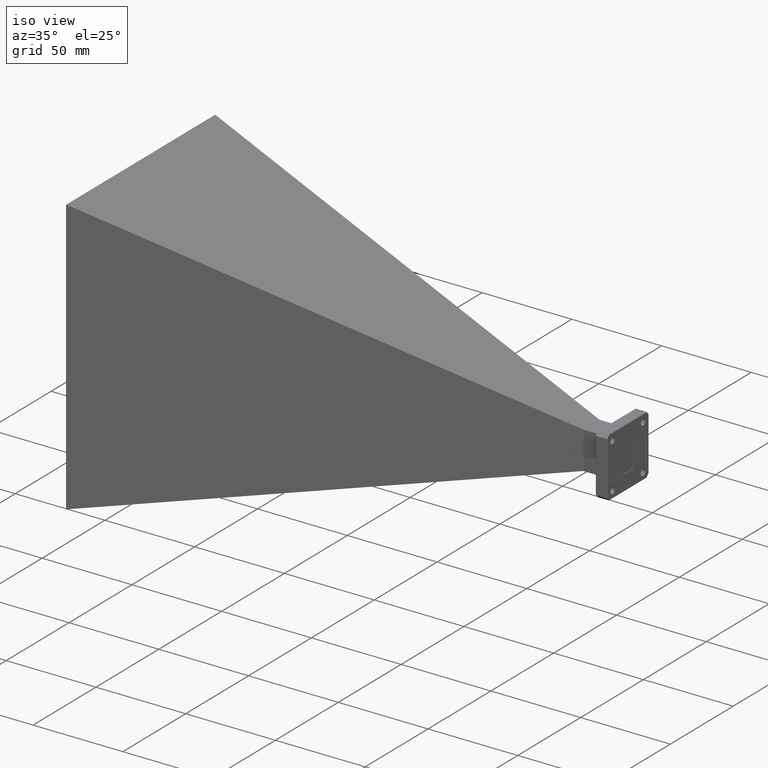
[diagram: clean part render]
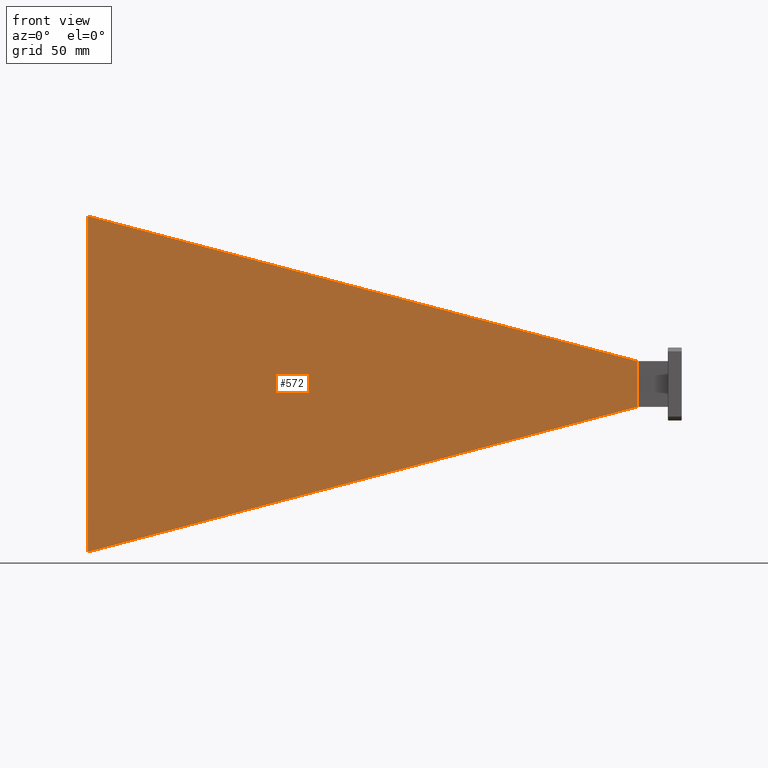
[diagram: tour spotlight — one face highlighted and labeled with its STEP entity id]
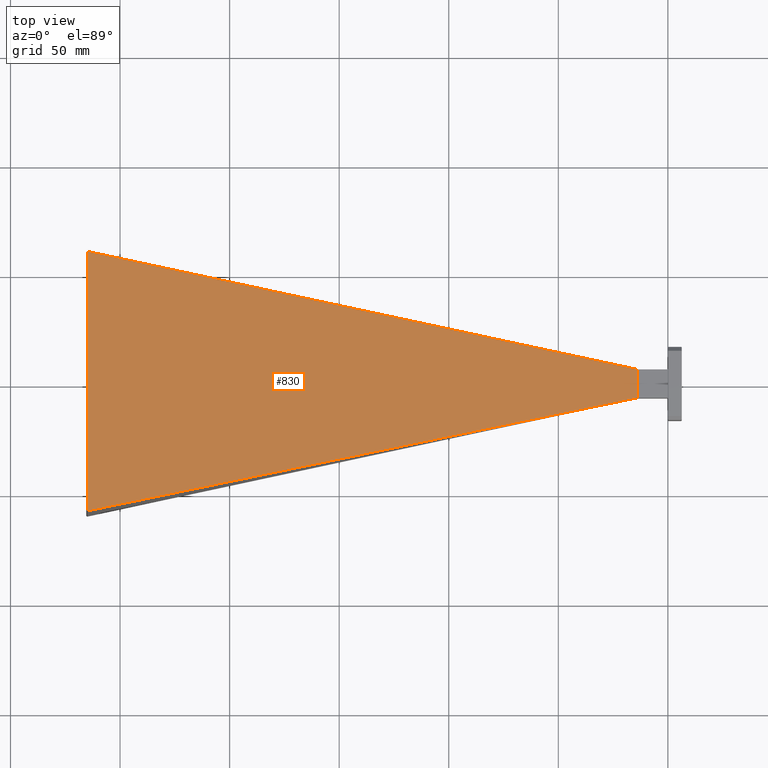
[diagram: tour spotlight — one face highlighted and labeled with its STEP entity id]
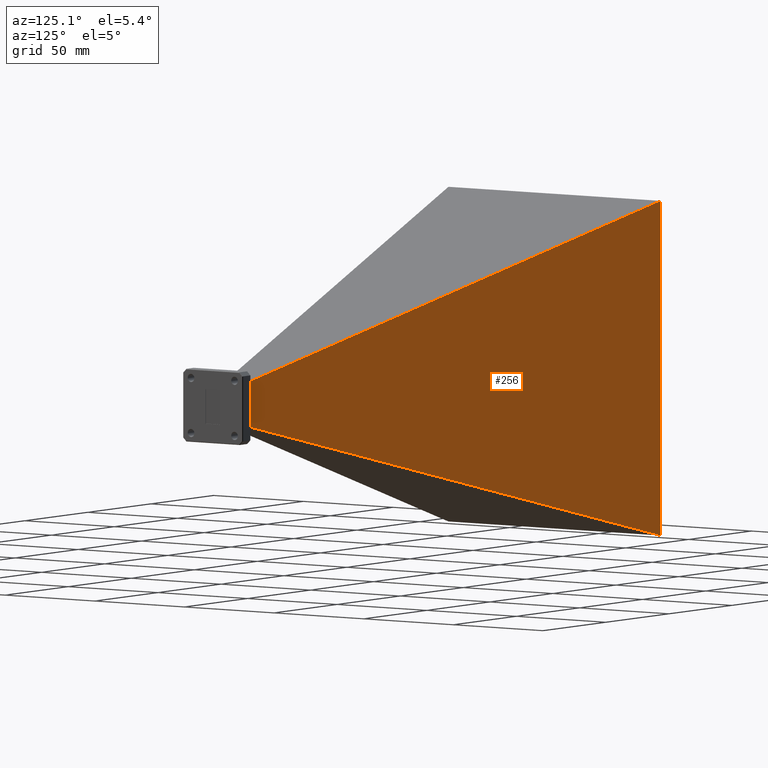
[diagram: tour spotlight — one face highlighted and labeled with its STEP entity id]
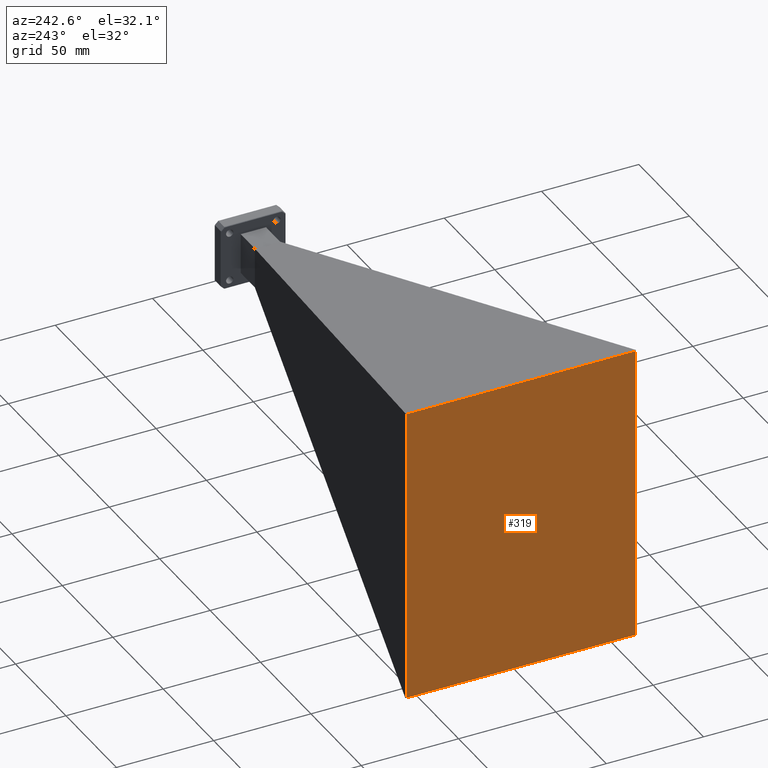
[diagram: tour spotlight — one face highlighted and labeled with its STEP entity id]
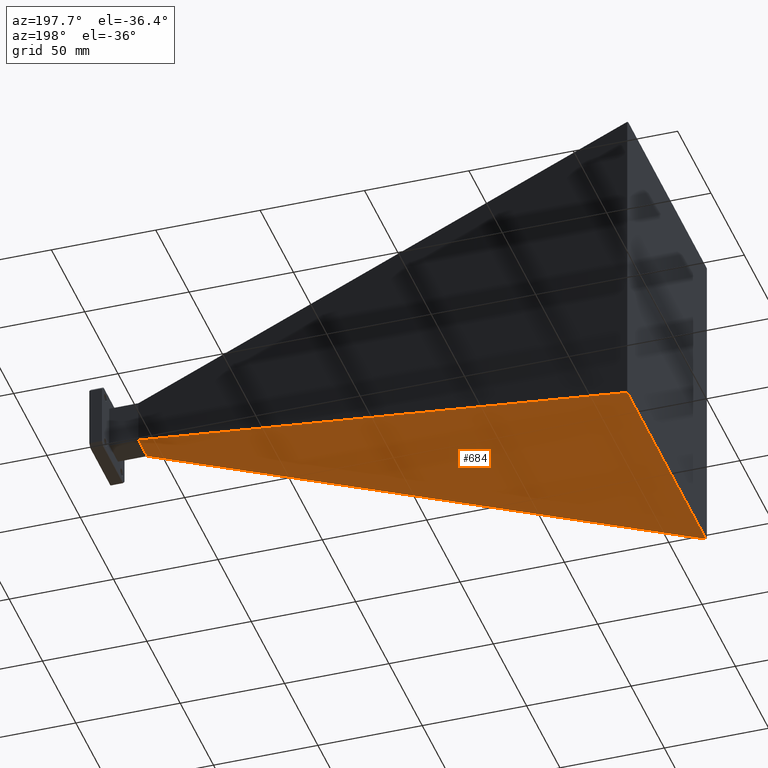
[diagram: tour spotlight — one face highlighted and labeled with its STEP entity id]
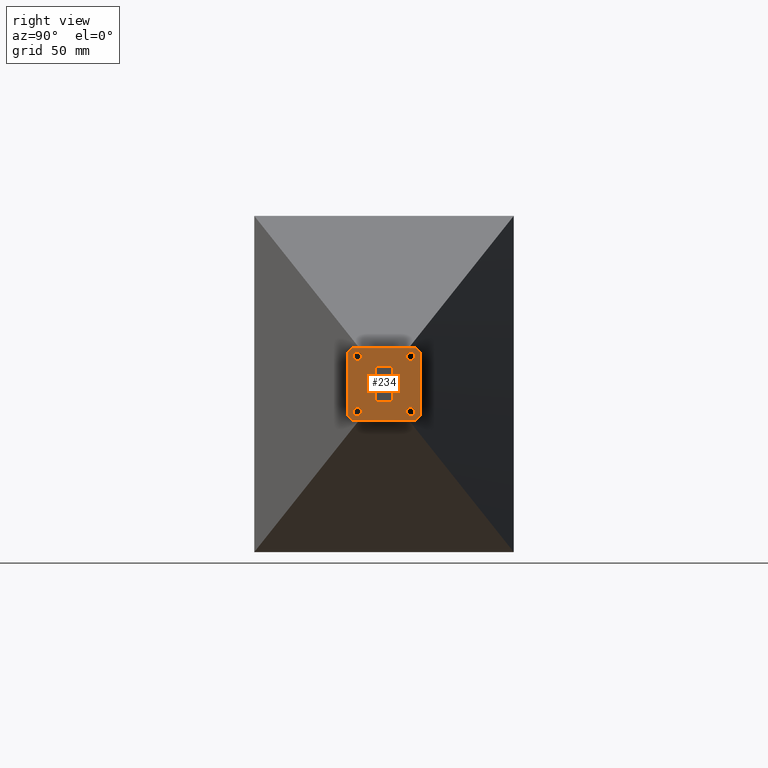
[diagram: tour spotlight — one face highlighted and labeled with its STEP entity id]
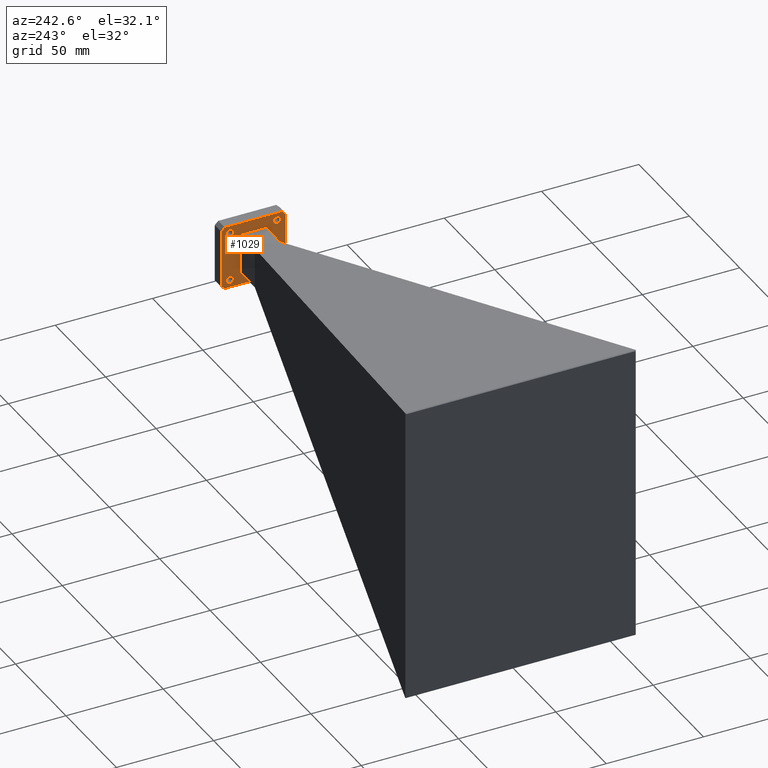
[diagram: tour spotlight — one face highlighted and labeled with its STEP entity id]
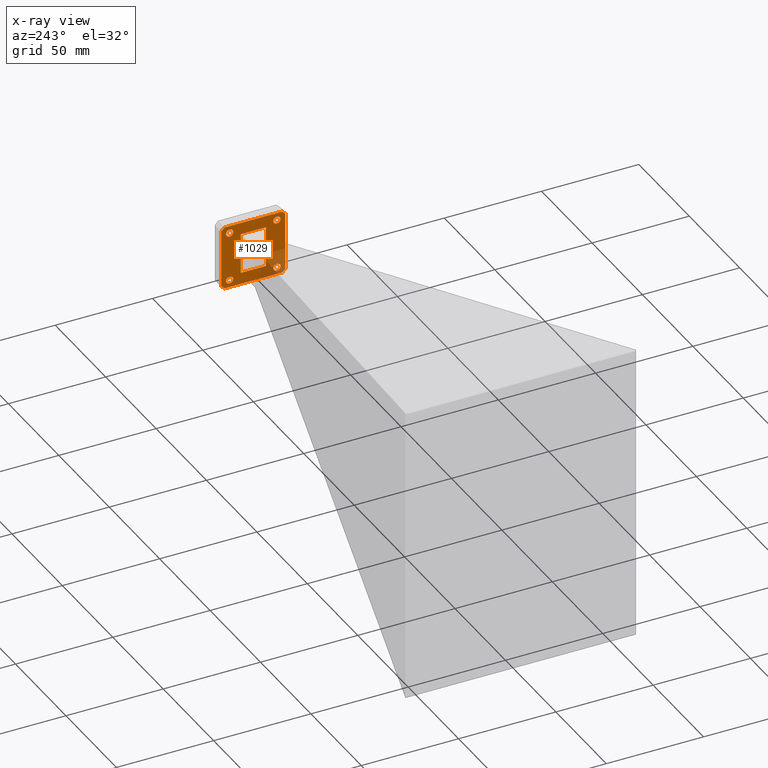
[diagram: x-ray of the same camera — body ghosted, this tour face saturated]
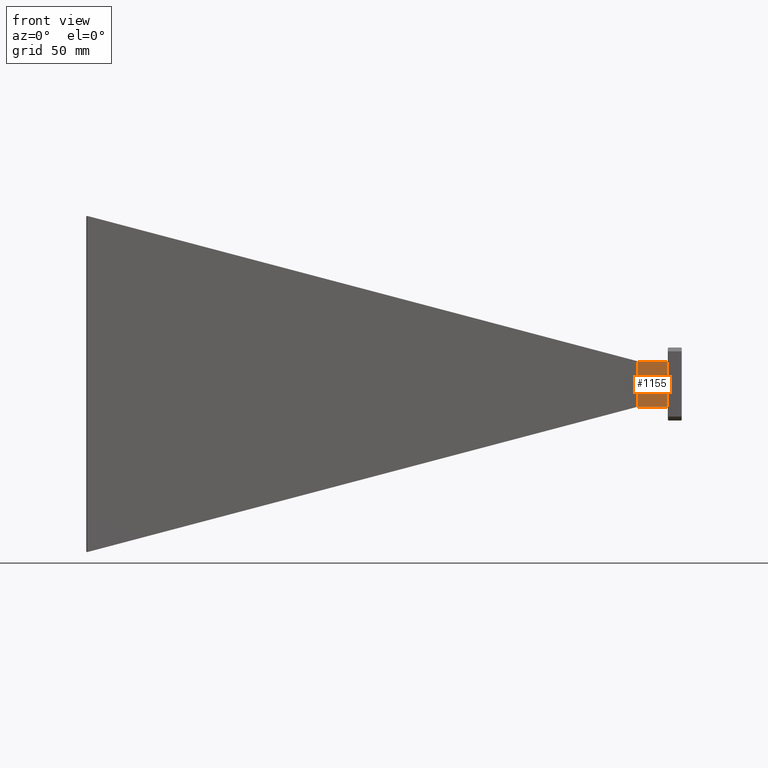
[diagram: tour spotlight — one face highlighted and labeled with its STEP entity id]
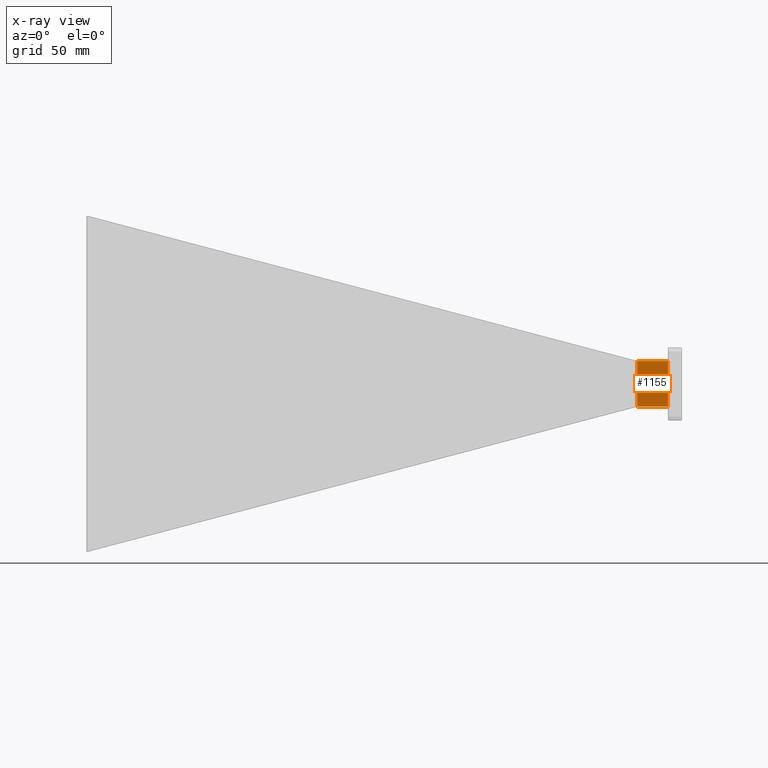
[diagram: x-ray of the same camera — body ghosted, this tour face saturated]
A machine part: a face-by-face anatomy tour. The part has 52 B-rep faces; the first image is the clean iso view, then the 8 largest visible faces are spotlighted one at a time (largest first), each with its STEP entity span.

Face 1 — front view, entity #572. In plain terms, the highlighted planar face has unit normal (-0.2056, 0.9786, -0).
Definition (entity closure, byte-faithful):
#31 = DIRECTION ( 'NONE',  ( -0.9786435543088368700, -0.2055645728469925300, 0.0000000000000000000 ) ) ;
#52 = ORIENTED_EDGE ( 'NONE', *, *, #519, .T. ) ;
#103 = VERTEX_POINT ( 'NONE', #1036 ) ;
#105 = FACE_OUTER_BOUND ( 'NONE', #690, .T. ) ;
#187 = VECTOR ( 'NONE', #320, 39.37007874015748900 ) ;
#198 = AXIS2_PLACEMENT_3D ( 'NONE', #1228, #1000, #31 ) ;
#267 = VECTOR ( 'NONE', #437, 39.37007874015748100 ) ;
#274 = PLANE ( 'NONE',  #198 ) ;
#311 = LINE ( 'NONE', #764, #1553 ) ;
#320 = DIRECTION ( 'NONE',  ( -0.9475210733738798100, -0.1990272800081800400, -0.2501838470504364500 ) ) ;
#437 = DIRECTION ( 'NONE',  ( -1.816786782790845300E-017, 8.649285477099961300E-017, 1.000000000000000000 ) ) ;
#464 = ORIENTED_EDGE ( 'NONE', *, *, #1197, .T. ) ;
#492 = CARTESIAN_POINT ( 'NONE',  ( -10.43042712891382400, -2.330888708543059600, 2.105002856822493500E-016 ) ) ;
#503 = VECTOR ( 'NONE', #762, 39.37007874015748100 ) ;
#519 = EDGE_CURVE ( 'NONE', #1318, #103, #1019, .T. ) ;
#572 = ADVANCED_FACE ( 'NONE', ( #105 ), #274, .F. ) ;
#585 = EDGE_CURVE ( 'NONE', #1325, #1318, #311, .T. ) ;
#690 = EDGE_LOOP ( 'NONE', ( #882, #52, #879, #464 ) ) ;
#762 = DIRECTION ( 'NONE',  ( 2.599588613867308300E-033, -9.030902458394260300E-017, -1.000000000000000000 ) ) ;
#764 = CARTESIAN_POINT ( 'NONE',  ( -0.5500000000000000400, -0.2555000000000000000, 0.4109999999999999200 ) ) ;
#775 = CARTESIAN_POINT ( 'NONE',  ( -10.43042712891382400, -2.330888708543059600, 3.019831971210175300 ) ) ;
#821 = LINE ( 'NONE', #1020, #267 ) ;
#823 = LINE ( 'NONE', #1371, #187 ) ;
#879 = ORIENTED_EDGE ( 'NONE', *, *, #1179, .F. ) ;
#882 = ORIENTED_EDGE ( 'NONE', *, *, #585, .T. ) ;
#945 = CARTESIAN_POINT ( 'NONE',  ( -0.5500000000000001600, -0.2555000000000000000, -0.4110000000000002000 ) ) ;
#968 = VERTEX_POINT ( 'NONE', #945 ) ;
#990 = DIRECTION ( 'NONE',  ( -0.9475210733738798100, -0.1990272800081800400, 0.2501838470504365000 ) ) ;
#1000 = DIRECTION ( 'NONE',  ( -0.2055645728469925600, 0.9786435543088369800, -8.838034480499373700E-017 ) ) ;
#1019 = LINE ( 'NONE', #492, #503 ) ;
#1020 = CARTESIAN_POINT ( 'NONE',  ( -0.5500000000000002700, -0.2554999999999998400, 1.210659708864073600E-017 ) ) ;
#1036 = CARTESIAN_POINT ( 'NONE',  ( -10.43042712891382200, -2.330888708543059600, -3.019831971210174400 ) ) ;
#1179 = EDGE_CURVE ( 'NONE', #968, #103, #823, .T. ) ;
#1197 = EDGE_CURVE ( 'NONE', #968, #1325, #821, .T. ) ;
#1228 = CARTESIAN_POINT ( 'NONE',  ( 0.02815883401052830800, -0.1340574449166772300, 1.210659708864073600E-017 ) ) ;
#1318 = VERTEX_POINT ( 'NONE', #775 ) ;
#1325 = VERTEX_POINT ( 'NONE', #1389 ) ;
#1371 = CARTESIAN_POINT ( 'NONE',  ( -0.5500000000000000400, -0.2555000000000000000, -0.4110000000000001400 ) ) ;
#1389 = CARTESIAN_POINT ( 'NONE',  ( -0.5500000000000002700, -0.2554999999999998900, 0.4110000000000002000 ) ) ;
#1553 = VECTOR ( 'NONE', #990, 39.37007874015748900 ) ;

Face 2 — top view, entity #830. In plain terms, the highlighted planar face has unit normal (-0.2553, -0, -0.9669).
Definition (entity closure, byte-faithful):
#35 = VERTEX_POINT ( 'NONE', #1247 ) ;
#99 = CARTESIAN_POINT ( 'NONE',  ( -0.5500000000000000400, 0.2555000000000000000, 0.4109999999999999200 ) ) ;
#121 = VERTEX_POINT ( 'NONE', #1286 ) ;
#127 = VECTOR ( 'NONE', #574, 39.37007874015748900 ) ;
#128 = VECTOR ( 'NONE', #873, 39.37007874015748900 ) ;
#161 = VECTOR ( 'NONE', #510, 39.37007874015748900 ) ;
#165 = EDGE_CURVE ( 'NONE', #1325, #121, #313, .T. ) ;
#173 = VERTEX_POINT ( 'NONE', #1393 ) ;
#225 = CARTESIAN_POINT ( 'NONE',  ( -10.43066271585688100, 3.533144259064127700E-016, 3.019894175681806700 ) ) ;
#270 = EDGE_CURVE ( 'NONE', #173, #35, #1147, .T. ) ;
#311 = LINE ( 'NONE', #764, #1553 ) ;
#313 = LINE ( 'NONE', #553, #793 ) ;
#338 = PLANE ( 'NONE',  #1467 ) ;
#405 = EDGE_CURVE ( 'NONE', #35, #1318, #1146, .T. ) ;
#446 = LINE ( 'NONE', #99, #127 ) ;
#463 = DIRECTION ( 'NONE',  ( -0.9668642071559803200, 0.0000000000000000000, 0.2552912159096699100 ) ) ;
#510 = DIRECTION ( 'NONE',  ( 0.8176158582900786600, -0.5337589064448571300, -0.2158836215727540400 ) ) ;
#553 = CARTESIAN_POINT ( 'NONE',  ( -0.5500000000000000400, 2.906827618119491600E-017, 0.4110000000000002000 ) ) ;
#574 = DIRECTION ( 'NONE',  ( -0.9475210733738798100, 0.1990272800081801800, 0.2501838470504364500 ) ) ;
#585 = EDGE_CURVE ( 'NONE', #1325, #1318, #311, .T. ) ;
#591 = EDGE_CURVE ( 'NONE', #1281, #173, #971, .T. ) ;
#630 = CARTESIAN_POINT ( 'NONE',  ( -9.916057635557525200, 2.666681239349232100, 2.884017642358320800 ) ) ;
#719 = ORIENTED_EDGE ( 'NONE', *, *, #591, .T. ) ;
#764 = CARTESIAN_POINT ( 'NONE',  ( -0.5500000000000000400, -0.2555000000000000000, 0.4109999999999999200 ) ) ;
#775 = CARTESIAN_POINT ( 'NONE',  ( -10.43042712891382400, -2.330888708543059600, 3.019831971210175300 ) ) ;
#793 = VECTOR ( 'NONE', #1046, 39.37007874015748100 ) ;
#815 = ORIENTED_EDGE ( 'NONE', *, *, #405, .T. ) ;
#830 = ADVANCED_FACE ( 'NONE', ( #1037 ), #338, .F. ) ;
#844 = CARTESIAN_POINT ( 'NONE',  ( -9.916057635557491400, -2.666681239349212500, 2.884017642358311000 ) ) ;
#845 = EDGE_LOOP ( 'NONE', ( #982, #815, #885, #1420, #984, #719 ) ) ;
#873 = DIRECTION ( 'NONE',  ( -0.8176158582900527900, -0.5337589064448997600, 0.2158836215727472600 ) ) ;
#885 = ORIENTED_EDGE ( 'NONE', *, *, #585, .F. ) ;
#971 = LINE ( 'NONE', #630, #128 ) ;
#982 = ORIENTED_EDGE ( 'NONE', *, *, #270, .T. ) ;
#984 = ORIENTED_EDGE ( 'NONE', *, *, #1383, .T. ) ;
#990 = DIRECTION ( 'NONE',  ( -0.9475210733738798100, -0.1990272800081800400, 0.2501838470504365000 ) ) ;
#1012 = CARTESIAN_POINT ( 'NONE',  ( -10.43042712891382400, 2.330888708543061000, 3.019831971210174900 ) ) ;
#1037 = FACE_OUTER_BOUND ( 'NONE', #845, .T. ) ;
#1046 = DIRECTION ( 'NONE',  ( -2.887825856553795500E-017, 1.000000000000000000, -1.093706043606831500E-016 ) ) ;
#1146 = LINE ( 'NONE', #844, #161 ) ;
#1147 = LINE ( 'NONE', #225, #1378 ) ;
#1152 = CARTESIAN_POINT ( 'NONE',  ( 0.06560244424911324000, 2.906827618119491600E-017, 0.2484560818922040000 ) ) ;
#1172 = DIRECTION ( 'NONE',  ( -0.2552912159096699100, -1.131188884139123500E-016, -0.9668642071559803200 ) ) ;
#1191 = DIRECTION ( 'NONE',  ( 0.0000000000000000000, -1.000000000000000000, 1.169956314203110500E-016 ) ) ;
#1247 = CARTESIAN_POINT ( 'NONE',  ( -10.43066271585688100, -2.330734911832997600, 3.019894175681806700 ) ) ;
#1281 = VERTEX_POINT ( 'NONE', #1012 ) ;
#1286 = CARTESIAN_POINT ( 'NONE',  ( -0.5500000000000001600, 0.2555000000000000600, 0.4109999999999999800 ) ) ;
#1318 = VERTEX_POINT ( 'NONE', #775 ) ;
#1325 = VERTEX_POINT ( 'NONE', #1389 ) ;
#1378 = VECTOR ( 'NONE', #1191, 39.37007874015748100 ) ;
#1383 = EDGE_CURVE ( 'NONE', #121, #1281, #446, .T. ) ;
#1389 = CARTESIAN_POINT ( 'NONE',  ( -0.5500000000000002700, -0.2554999999999998900, 0.4110000000000002000 ) ) ;
#1393 = CARTESIAN_POINT ( 'NONE',  ( -10.43066271585688100, 2.330734911833002100, 3.019894175681806700 ) ) ;
#1420 = ORIENTED_EDGE ( 'NONE', *, *, #165, .T. ) ;
#1467 = AXIS2_PLACEMENT_3D ( 'NONE', #1152, #1172, #463 ) ;
#1553 = VECTOR ( 'NONE', #990, 39.37007874015748900 ) ;

Face 3 — auxiliary view, entity #256. In plain terms, the highlighted planar face has unit normal (-0.2056, -0.9786, 0).
Definition (entity closure, byte-faithful):
#56 = ORIENTED_EDGE ( 'NONE', *, *, #509, .T. ) ;
#99 = CARTESIAN_POINT ( 'NONE',  ( -0.5500000000000000400, 0.2555000000000000000, 0.4109999999999999200 ) ) ;
#109 = VECTOR ( 'NONE', #1062, 39.37007874015748100 ) ;
#121 = VERTEX_POINT ( 'NONE', #1286 ) ;
#127 = VECTOR ( 'NONE', #574, 39.37007874015748900 ) ;
#136 = CARTESIAN_POINT ( 'NONE',  ( -0.5500000000000000400, 0.2555000000000000600, -0.4110000000000002000 ) ) ;
#256 = ADVANCED_FACE ( 'NONE', ( #658 ), #1303, .F. ) ;
#265 = DIRECTION ( 'NONE',  ( -0.9475210733738798100, 0.1990272800081801200, -0.2501838470504365600 ) ) ;
#330 = AXIS2_PLACEMENT_3D ( 'NONE', #696, #594, #1176 ) ;
#349 = VERTEX_POINT ( 'NONE', #136 ) ;
#375 = DIRECTION ( 'NONE',  ( -4.818992971522679100E-034, 9.030902458394256600E-017, 1.000000000000000000 ) ) ;
#446 = LINE ( 'NONE', #99, #127 ) ;
#509 = EDGE_CURVE ( 'NONE', #517, #1281, #1459, .T. ) ;
#517 = VERTEX_POINT ( 'NONE', #992 ) ;
#551 = VECTOR ( 'NONE', #375, 39.37007874015748100 ) ;
#574 = DIRECTION ( 'NONE',  ( -0.9475210733738798100, 0.1990272800081801800, 0.2501838470504364500 ) ) ;
#594 = DIRECTION ( 'NONE',  ( -0.2055645728469925900, -0.9786435543088369800, 8.838034480499368800E-017 ) ) ;
#622 = EDGE_LOOP ( 'NONE', ( #1158, #56, #670, #1071 ) ) ;
#658 = FACE_OUTER_BOUND ( 'NONE', #622, .T. ) ;
#670 = ORIENTED_EDGE ( 'NONE', *, *, #1383, .F. ) ;
#696 = CARTESIAN_POINT ( 'NONE',  ( 0.02815883401052837700, 0.1340574449166775100, -1.210659708864075500E-017 ) ) ;
#992 = CARTESIAN_POINT ( 'NONE',  ( -10.43042712891382500, 2.330888708543061000, -3.019831971210176700 ) ) ;
#1006 = LINE ( 'NONE', #1240, #1468 ) ;
#1012 = CARTESIAN_POINT ( 'NONE',  ( -10.43042712891382400, 2.330888708543061000, 3.019831971210174900 ) ) ;
#1062 = DIRECTION ( 'NONE',  ( -1.816786782790844700E-017, -8.649285477099955100E-017, -1.000000000000000000 ) ) ;
#1066 = EDGE_CURVE ( 'NONE', #349, #517, #1006, .T. ) ;
#1071 = ORIENTED_EDGE ( 'NONE', *, *, #1417, .T. ) ;
#1158 = ORIENTED_EDGE ( 'NONE', *, *, #1066, .T. ) ;
#1176 = DIRECTION ( 'NONE',  ( 0.9786435543088368700, -0.2055645728469925600, 0.0000000000000000000 ) ) ;
#1240 = CARTESIAN_POINT ( 'NONE',  ( -0.5500000000000000400, 0.2555000000000000000, -0.4110000000000001400 ) ) ;
#1281 = VERTEX_POINT ( 'NONE', #1012 ) ;
#1286 = CARTESIAN_POINT ( 'NONE',  ( -0.5500000000000001600, 0.2555000000000000600, 0.4109999999999999800 ) ) ;
#1303 = PLANE ( 'NONE',  #330 ) ;
#1324 = LINE ( 'NONE', #1529, #109 ) ;
#1383 = EDGE_CURVE ( 'NONE', #121, #1281, #446, .T. ) ;
#1417 = EDGE_CURVE ( 'NONE', #121, #349, #1324, .T. ) ;
#1459 = LINE ( 'NONE', #1470, #551 ) ;
#1468 = VECTOR ( 'NONE', #265, 39.37007874015748900 ) ;
#1470 = CARTESIAN_POINT ( 'NONE',  ( -10.43042712891382500, 2.330888708543061800, -2.105002856822494800E-016 ) ) ;
#1529 = CARTESIAN_POINT ( 'NONE',  ( -0.5499999999999999300, 0.2555000000000001200, -1.210659708864075500E-017 ) ) ;

Face 4 — auxiliary view, entity #319. In plain terms, the highlighted planar face has unit normal (1, 0, 0).
Definition (entity closure, byte-faithful):
#150 = CARTESIAN_POINT ( 'NONE',  ( -10.45000000000000100, -2.318111076894876300, 2.093463502316090500E-016 ) ) ;
#276 = FACE_OUTER_BOUND ( 'NONE', #1457, .T. ) ;
#319 = ADVANCED_FACE ( 'NONE', ( #276 ), #342, .F. ) ;
#342 = PLANE ( 'NONE',  #412 ) ;
#344 = DIRECTION ( 'NONE',  ( 0.0000000000000000000, 1.000000000000000000, -1.169956314203110800E-016 ) ) ;
#389 = EDGE_CURVE ( 'NONE', #582, #1485, #1096, .T. ) ;
#412 = AXIS2_PLACEMENT_3D ( 'NONE', #938, #587, #1543 ) ;
#432 = VECTOR ( 'NONE', #1032, 39.37007874015748100 ) ;
#488 = VERTEX_POINT ( 'NONE', #745 ) ;
#576 = LINE ( 'NONE', #761, #1501 ) ;
#582 = VERTEX_POINT ( 'NONE', #1106 ) ;
#587 = DIRECTION ( 'NONE',  ( 1.000000000000000000, 0.0000000000000000000, 0.0000000000000000000 ) ) ;
#597 = CARTESIAN_POINT ( 'NONE',  ( -10.45000000000000100, -2.318111076894875800, 3.008635469251668600 ) ) ;
#631 = ORIENTED_EDGE ( 'NONE', *, *, #1280, .T. ) ;
#641 = LINE ( 'NONE', #911, #432 ) ;
#721 = VECTOR ( 'NONE', #344, 39.37007874015748100 ) ;
#745 = CARTESIAN_POINT ( 'NONE',  ( -10.45000000000000100, 2.318111076894878900, 3.008635469251668100 ) ) ;
#761 = CARTESIAN_POINT ( 'NONE',  ( -10.45000000000000100, 2.318111076894878500, -2.093463502316091500E-016 ) ) ;
#787 = ORIENTED_EDGE ( 'NONE', *, *, #1166, .T. ) ;
#878 = EDGE_CURVE ( 'NONE', #1485, #488, #1445, .T. ) ;
#911 = CARTESIAN_POINT ( 'NONE',  ( -10.45000000000000100, -7.039944128772858600E-016, -3.008635469251669500 ) ) ;
#937 = CARTESIAN_POINT ( 'NONE',  ( -10.45000000000000100, 3.519972064386428800E-016, 3.008635469251668600 ) ) ;
#938 = CARTESIAN_POINT ( 'NONE',  ( -10.45000000000000100, 0.0000000000000000000, 0.0000000000000000000 ) ) ;
#949 = VECTOR ( 'NONE', #1212, 39.37007874015748100 ) ;
#1007 = DIRECTION ( 'NONE',  ( 0.0000000000000000000, -9.030902458394256600E-017, -1.000000000000000000 ) ) ;
#1018 = ORIENTED_EDGE ( 'NONE', *, *, #389, .T. ) ;
#1032 = DIRECTION ( 'NONE',  ( 0.0000000000000000000, -1.000000000000000000, 2.339912628406221500E-016 ) ) ;
#1096 = LINE ( 'NONE', #150, #949 ) ;
#1106 = CARTESIAN_POINT ( 'NONE',  ( -10.45000000000000100, -2.318111076894876700, -3.008635469251668600 ) ) ;
#1112 = ORIENTED_EDGE ( 'NONE', *, *, #878, .T. ) ;
#1166 = EDGE_CURVE ( 'NONE', #488, #1341, #576, .T. ) ;
#1212 = DIRECTION ( 'NONE',  ( 0.0000000000000000000, 9.030902458394260300E-017, 1.000000000000000000 ) ) ;
#1280 = EDGE_CURVE ( 'NONE', #1341, #582, #641, .T. ) ;
#1341 = VERTEX_POINT ( 'NONE', #1427 ) ;
#1427 = CARTESIAN_POINT ( 'NONE',  ( -10.45000000000000100, 2.318111076894878100, -3.008635469251669900 ) ) ;
#1445 = LINE ( 'NONE', #937, #721 ) ;
#1457 = EDGE_LOOP ( 'NONE', ( #1018, #1112, #787, #631 ) ) ;
#1485 = VERTEX_POINT ( 'NONE', #597 ) ;
#1501 = VECTOR ( 'NONE', #1007, 39.37007874015748100 ) ;
#1543 = DIRECTION ( 'NONE',  ( 0.0000000000000000000, 0.0000000000000000000, -1.000000000000000000 ) ) ;

Face 5 — auxiliary view, entity #684. In plain terms, the highlighted planar face has unit normal (-0.2553, 0, 0.9669).
Definition (entity closure, byte-faithful):
#103 = VERTEX_POINT ( 'NONE', #1036 ) ;
#136 = CARTESIAN_POINT ( 'NONE',  ( -0.5500000000000000400, 0.2555000000000000600, -0.4110000000000002000 ) ) ;
#177 = EDGE_CURVE ( 'NONE', #345, #517, #292, .T. ) ;
#187 = VECTOR ( 'NONE', #320, 39.37007874015748900 ) ;
#220 = ORIENTED_EDGE ( 'NONE', *, *, #1066, .F. ) ;
#265 = DIRECTION ( 'NONE',  ( -0.9475210733738798100, 0.1990272800081801200, -0.2501838470504365600 ) ) ;
#292 = LINE ( 'NONE', #1518, #720 ) ;
#302 = EDGE_CURVE ( 'NONE', #103, #1394, #1494, .T. ) ;
#320 = DIRECTION ( 'NONE',  ( -0.9475210733738798100, -0.1990272800081800400, -0.2501838470504364500 ) ) ;
#345 = VERTEX_POINT ( 'NONE', #985 ) ;
#349 = VERTEX_POINT ( 'NONE', #136 ) ;
#350 = CARTESIAN_POINT ( 'NONE',  ( -10.43066271585688100, -2.330734911832998500, -3.019894175681806700 ) ) ;
#370 = VECTOR ( 'NONE', #781, 39.37007874015748100 ) ;
#416 = VECTOR ( 'NONE', #792, 39.37007874015748100 ) ;
#440 = AXIS2_PLACEMENT_3D ( 'NONE', #1398, #776, #1259 ) ;
#502 = ORIENTED_EDGE ( 'NONE', *, *, #1261, .T. ) ;
#515 = ORIENTED_EDGE ( 'NONE', *, *, #177, .T. ) ;
#517 = VERTEX_POINT ( 'NONE', #992 ) ;
#666 = CARTESIAN_POINT ( 'NONE',  ( -10.43066271585688100, -7.066288518128256500E-016, -3.019894175681807200 ) ) ;
#684 = ADVANCED_FACE ( 'NONE', ( #1279 ), #1267, .F. ) ;
#688 = DIRECTION ( 'NONE',  ( 0.8176158582900527900, 0.5337589064448997600, 0.2158836215727471800 ) ) ;
#720 = VECTOR ( 'NONE', #688, 39.37007874015748900 ) ;
#729 = LINE ( 'NONE', #666, #416 ) ;
#747 = EDGE_CURVE ( 'NONE', #349, #968, #1163, .T. ) ;
#776 = DIRECTION ( 'NONE',  ( -0.2552912159096699700, 2.262377768278247000E-016, 0.9668642071559803200 ) ) ;
#781 = DIRECTION ( 'NONE',  ( -5.775651713107592200E-017, -1.000000000000000000, 2.187412087213663100E-016 ) ) ;
#792 = DIRECTION ( 'NONE',  ( 0.0000000000000000000, 1.000000000000000000, -2.339912628406221000E-016 ) ) ;
#823 = LINE ( 'NONE', #1371, #187 ) ;
#908 = EDGE_LOOP ( 'NONE', ( #1185, #1300, #502, #515, #220, #1292 ) ) ;
#945 = CARTESIAN_POINT ( 'NONE',  ( -0.5500000000000001600, -0.2555000000000000000, -0.4110000000000002000 ) ) ;
#968 = VERTEX_POINT ( 'NONE', #945 ) ;
#985 = CARTESIAN_POINT ( 'NONE',  ( -10.43066271585688100, 2.330734911833001200, -3.019894175681807600 ) ) ;
#992 = CARTESIAN_POINT ( 'NONE',  ( -10.43042712891382500, 2.330888708543061000, -3.019831971210176700 ) ) ;
#1006 = LINE ( 'NONE', #1240, #1468 ) ;
#1036 = CARTESIAN_POINT ( 'NONE',  ( -10.43042712891382200, -2.330888708543059600, -3.019831971210174400 ) ) ;
#1066 = EDGE_CURVE ( 'NONE', #349, #517, #1006, .T. ) ;
#1163 = LINE ( 'NONE', #1508, #370 ) ;
#1168 = VECTOR ( 'NONE', #1448, 39.37007874015748900 ) ;
#1179 = EDGE_CURVE ( 'NONE', #968, #103, #823, .T. ) ;
#1185 = ORIENTED_EDGE ( 'NONE', *, *, #1179, .T. ) ;
#1240 = CARTESIAN_POINT ( 'NONE',  ( -0.5500000000000000400, 0.2555000000000000000, -0.4110000000000001400 ) ) ;
#1259 = DIRECTION ( 'NONE',  ( 0.9668642071559803200, 0.0000000000000000000, 0.2552912159096699700 ) ) ;
#1261 = EDGE_CURVE ( 'NONE', #1394, #345, #729, .T. ) ;
#1267 = PLANE ( 'NONE',  #440 ) ;
#1279 = FACE_OUTER_BOUND ( 'NONE', #908, .T. ) ;
#1292 = ORIENTED_EDGE ( 'NONE', *, *, #747, .T. ) ;
#1300 = ORIENTED_EDGE ( 'NONE', *, *, #302, .T. ) ;
#1371 = CARTESIAN_POINT ( 'NONE',  ( -0.5500000000000000400, -0.2555000000000000000, -0.4110000000000001400 ) ) ;
#1394 = VERTEX_POINT ( 'NONE', #350 ) ;
#1398 = CARTESIAN_POINT ( 'NONE',  ( 0.06560244424911325400, -5.813655236238983300E-017, -0.2484560818922040000 ) ) ;
#1440 = CARTESIAN_POINT ( 'NONE',  ( -9.916057635557491400, -2.666681239349213000, -2.884017642358311000 ) ) ;
#1448 = DIRECTION ( 'NONE',  ( -0.8176158582900787700, 0.5337589064448571300, -0.2158836215727542600 ) ) ;
#1468 = VECTOR ( 'NONE', #265, 39.37007874015748900 ) ;
#1494 = LINE ( 'NONE', #1440, #1168 ) ;
#1508 = CARTESIAN_POINT ( 'NONE',  ( -0.5500000000000000400, -5.813655236238983300E-017, -0.4110000000000002000 ) ) ;
#1518 = CARTESIAN_POINT ( 'NONE',  ( -9.916057635557525200, 2.666681239349231600, -2.884017642358321300 ) ) ;

Face 6 — right view, entity #234. In plain terms, the highlighted planar face has unit normal (1, 0, -0).
Definition (entity closure, byte-faithful):
#4 = VERTEX_POINT ( 'NONE', #294 ) ;
#9 = DIRECTION ( 'NONE',  ( -0.0000000000000000000, -0.0000000000000000000, 1.000000000000000000 ) ) ;
#16 = DIRECTION ( 'NONE',  ( 1.000000000000000000, -0.0000000000000000000, -0.0000000000000000000 ) ) ;
#46 = CARTESIAN_POINT ( 'NONE',  ( 0.2500000000000000000, 0.4779999999999998100, 0.4970000000000001100 ) ) ;
#47 = CARTESIAN_POINT ( 'NONE',  ( 0.2500000000000000000, -0.1554999999999999400, 0.3110000000000001100 ) ) ;
#48 = VECTOR ( 'NONE', #423, 39.37007874015748100 ) ;
#67 = VECTOR ( 'NONE', #210, 39.37007874015748100 ) ;
#93 = VECTOR ( 'NONE', #1189, 39.37007874015748900 ) ;
#95 = EDGE_CURVE ( 'NONE', #920, #1054, #925, .T. ) ;
#96 = CARTESIAN_POINT ( 'NONE',  ( 0.2500000000000000000, -0.4780000000000000900, -0.5704999999999997900 ) ) ;
#108 = CARTESIAN_POINT ( 'NONE',  ( 0.2500000000000000000, 0.6459999999999974700, -0.5818578643762679600 ) ) ;
#115 = DIRECTION ( 'NONE',  ( 0.0000000000000000000, 0.0000000000000000000, -1.000000000000000000 ) ) ;
#118 = DIRECTION ( 'NONE',  ( 1.000000000000000000, 0.0000000000000000000, -0.0000000000000000000 ) ) ;
#120 = AXIS2_PLACEMENT_3D ( 'NONE', #544, #185, #1263 ) ;
#146 = EDGE_CURVE ( 'NONE', #633, #195, #1074, .T. ) ;
#163 = FACE_BOUND ( 'NONE', #214, .T. ) ;
#168 = AXIS2_PLACEMENT_3D ( 'NONE', #1313, #118, #957 ) ;
#169 = CARTESIAN_POINT ( 'NONE',  ( 0.2500000000000000000, 0.4779999999999998100, 0.5705000000000001200 ) ) ;
#171 = ORIENTED_EDGE ( 'NONE', *, *, #1504, .F. ) ;
#172 = CARTESIAN_POINT ( 'NONE',  ( 0.2500000000000000000, -0.4780000000000002000, 0.4235000000000001500 ) ) ;
#175 = EDGE_LOOP ( 'NONE', ( #839, #451 ) ) ;
#185 = DIRECTION ( 'NONE',  ( 1.000000000000000000, -0.0000000000000000000, -0.0000000000000000000 ) ) ;
#190 = EDGE_CURVE ( 'NONE', #573, #253, #1327, .T. ) ;
#195 = VERTEX_POINT ( 'NONE', #96 ) ;
#201 = DIRECTION ( 'NONE',  ( 0.0000000000000000000, 0.0000000000000000000, -1.000000000000000000 ) ) ;
#203 = FACE_OUTER_BOUND ( 'NONE', #495, .T. ) ;
#210 = DIRECTION ( 'NONE',  ( 0.0000000000000000000, -1.000000000000000000, -1.041100607341563500E-016 ) ) ;
#212 = DIRECTION ( 'NONE',  ( 1.000000000000000000, -0.0000000000000000000, -0.0000000000000000000 ) ) ;
#214 = EDGE_LOOP ( 'NONE', ( #536, #1442 ) ) ;
#218 = ORIENTED_EDGE ( 'NONE', *, *, #1136, .F. ) ;
#233 = CARTESIAN_POINT ( 'NONE',  ( 0.2500000000000000000, -0.6139289321881350500, -0.6139289321881301600 ) ) ;
#234 = ADVANCED_FACE ( 'NONE', ( #1306, #203, #163, #1535, #743, #989 ), #825, .T. ) ;
#237 = LINE ( 'NONE', #361, #1140 ) ;
#244 = CARTESIAN_POINT ( 'NONE',  ( 0.2500000000000000000, 0.1555000000000000000, 0.3110000000000001100 ) ) ;
#249 = CARTESIAN_POINT ( 'NONE',  ( 0.2500000000000000000, -0.4780000000000002000, 0.4970000000000001100 ) ) ;
#253 = VERTEX_POINT ( 'NONE', #1426 ) ;
#257 = DIRECTION ( 'NONE',  ( 1.000000000000000000, -0.0000000000000000000, -0.0000000000000000000 ) ) ;
#263 = CARTESIAN_POINT ( 'NONE',  ( 0.2500000000000000000, 0.4779999999999998100, 0.4235000000000001500 ) ) ;
#275 = VERTEX_POINT ( 'NONE', #487 ) ;
#284 = ORIENTED_EDGE ( 'NONE', *, *, #965, .T. ) ;
#294 = CARTESIAN_POINT ( 'NONE',  ( 0.2500000000000000000, -0.5818578643762678500, 0.6459999999999971300 ) ) ;
#296 = DIRECTION ( 'NONE',  ( 1.000000000000000000, -0.0000000000000000000, -0.0000000000000000000 ) ) ;
#332 = DIRECTION ( 'NONE',  ( 1.000000000000000000, -0.0000000000000000000, -0.0000000000000000000 ) ) ;
#361 = CARTESIAN_POINT ( 'NONE',  ( 0.2500000000000000000, -0.6139289321881312700, 0.6139289321881338200 ) ) ;
#368 = VERTEX_POINT ( 'NONE', #614 ) ;
#374 = ORIENTED_EDGE ( 'NONE', *, *, #1302, .T. ) ;
#376 = CARTESIAN_POINT ( 'NONE',  ( 0.2500000000000000000, 0.6139289321881301600, -0.6139289321881348200 ) ) ;
#379 = VECTOR ( 'NONE', #1379, 39.37007874015748100 ) ;
#394 = VERTEX_POINT ( 'NONE', #263 ) ;
#401 = VERTEX_POINT ( 'NONE', #1088 ) ;
#406 = CIRCLE ( 'NONE', #120, 0.07349999999999998200 ) ;
#413 = AXIS2_PLACEMENT_3D ( 'NONE', #613, #16, #414 ) ;
#414 = DIRECTION ( 'NONE',  ( 0.0000000000000000000, 0.0000000000000000000, -1.000000000000000000 ) ) ;
#420 = LINE ( 'NONE', #376, #1253 ) ;
#423 = DIRECTION ( 'NONE',  ( 0.0000000000000000000, 2.082201214683127100E-016, -1.000000000000000000 ) ) ;
#436 = CARTESIAN_POINT ( 'NONE',  ( 0.2500000000000000000, 0.6139289321881339400, 0.6139289321881303800 ) ) ;
#451 = ORIENTED_EDGE ( 'NONE', *, *, #146, .F. ) ;
#473 = AXIS2_PLACEMENT_3D ( 'NONE', #797, #332, #201 ) ;
#478 = ORIENTED_EDGE ( 'NONE', *, *, #95, .T. ) ;
#480 = VERTEX_POINT ( 'NONE', #621 ) ;
#487 = CARTESIAN_POINT ( 'NONE',  ( 0.2500000000000000000, 0.1555000000000000000, -0.3110000000000001100 ) ) ;
#495 = EDGE_LOOP ( 'NONE', ( #284, #478, #1145, #870, #998, #963, #1294, #374 ) ) ;
#526 = CARTESIAN_POINT ( 'NONE',  ( 0.2500000000000000000, 0.4779999999999999200, -0.4969999999999998300 ) ) ;
#528 = DIRECTION ( 'NONE',  ( 1.000000000000000000, -0.0000000000000000000, -0.0000000000000000000 ) ) ;
#536 = ORIENTED_EDGE ( 'NONE', *, *, #1105, .F. ) ;
#544 = CARTESIAN_POINT ( 'NONE',  ( 0.2500000000000000000, 0.4779999999999999200, -0.4969999999999998300 ) ) ;
#559 = CARTESIAN_POINT ( 'NONE',  ( 0.2500000000000000000, -0.6459999999999971300, -0.5859999999999997400 ) ) ;
#562 = VERTEX_POINT ( 'NONE', #1227 ) ;
#568 = LINE ( 'NONE', #1381, #673 ) ;
#570 = CARTESIAN_POINT ( 'NONE',  ( 0.2500000000000000000, 0.1555000000000000000, 0.3110000000000001100 ) ) ;
#573 = VERTEX_POINT ( 'NONE', #1352 ) ;
#579 = CIRCLE ( 'NONE', #413, 0.07349999999999998200 ) ;
#590 = DIRECTION ( 'NONE',  ( 0.0000000000000000000, -0.7071067811865489100, -0.7071067811865461300 ) ) ;
#603 = CIRCLE ( 'NONE', #756, 0.07349999999999998200 ) ;
#609 = EDGE_CURVE ( 'NONE', #368, #791, #603, .T. ) ;
#613 = CARTESIAN_POINT ( 'NONE',  ( 0.2500000000000000000, 0.4779999999999998100, 0.4970000000000001100 ) ) ;
#614 = CARTESIAN_POINT ( 'NONE',  ( 0.2500000000000000000, 0.4779999999999999200, -0.5704999999999997900 ) ) ;
#619 = VECTOR ( 'NONE', #1562, 39.37007874015748100 ) ;
#621 = CARTESIAN_POINT ( 'NONE',  ( 0.2500000000000000000, -0.4780000000000002000, 0.5705000000000001200 ) ) ;
#633 = VERTEX_POINT ( 'NONE', #1138 ) ;
#651 = DIRECTION ( 'NONE',  ( -0.0000000000000000000, 1.000000000000000000, -0.0000000000000000000 ) ) ;
#655 = LINE ( 'NONE', #559, #48 ) ;
#657 = CARTESIAN_POINT ( 'NONE',  ( 0.2500000000000000000, -0.6459999999999971300, -0.5818578643762677400 ) ) ;
#660 = EDGE_CURVE ( 'NONE', #791, #368, #406, .T. ) ;
#673 = VECTOR ( 'NONE', #651, 39.37007874015748100 ) ;
#701 = EDGE_CURVE ( 'NONE', #401, #562, #1328, .T. ) ;
#726 = CARTESIAN_POINT ( 'NONE',  ( 0.2500000000000000000, 0.1555000000000000000, 0.3110000000000001100 ) ) ;
#727 = DIRECTION ( 'NONE',  ( 0.0000000000000000000, 0.0000000000000000000, -1.000000000000000000 ) ) ;
#735 = VERTEX_POINT ( 'NONE', #1374 ) ;
#737 = DIRECTION ( 'NONE',  ( 0.0000000000000000000, 0.0000000000000000000, -1.000000000000000000 ) ) ;
#739 = EDGE_CURVE ( 'NONE', #562, #275, #568, .T. ) ;
#743 = FACE_BOUND ( 'NONE', #980, .T. ) ;
#756 = AXIS2_PLACEMENT_3D ( 'NONE', #526, #1484, #1360 ) ;
#759 = VECTOR ( 'NONE', #1245, 39.37007874015748100 ) ;
#777 = EDGE_CURVE ( 'NONE', #195, #633, #1406, .T. ) ;
#791 = VERTEX_POINT ( 'NONE', #1044 ) ;
#797 = CARTESIAN_POINT ( 'NONE',  ( 0.2500000000000000000, -0.4780000000000000900, -0.4969999999999998300 ) ) ;
#799 = CARTESIAN_POINT ( 'NONE',  ( 0.2500000000000000000, -0.5860000000000000800, 0.6459999999999971300 ) ) ;
#825 = PLANE ( 'NONE',  #168 ) ;
#839 = ORIENTED_EDGE ( 'NONE', *, *, #777, .F. ) ;
#856 = CARTESIAN_POINT ( 'NONE',  ( 0.2500000000000000000, 0.5818578643762674100, -0.6459999999999974700 ) ) ;
#870 = ORIENTED_EDGE ( 'NONE', *, *, #1225, .T. ) ;
#901 = CIRCLE ( 'NONE', #1255, 0.07349999999999998200 ) ;
#920 = VERTEX_POINT ( 'NONE', #967 ) ;
#925 = LINE ( 'NONE', #1167, #1361 ) ;
#957 = DIRECTION ( 'NONE',  ( -0.0000000000000000000, 0.0000000000000000000, -1.000000000000000000 ) ) ;
#963 = ORIENTED_EDGE ( 'NONE', *, *, #1350, .T. ) ;
#965 = EDGE_CURVE ( 'NONE', #1275, #920, #1502, .T. ) ;
#967 = CARTESIAN_POINT ( 'NONE',  ( 0.2500000000000000000, -0.5818578643762680700, -0.6459999999999974700 ) ) ;
#975 = AXIS2_PLACEMENT_3D ( 'NONE', #1429, #212, #1415 ) ;
#976 = CARTESIAN_POINT ( 'NONE',  ( 0.2500000000000000000, -0.4780000000000002000, 0.4970000000000001100 ) ) ;
#980 = EDGE_LOOP ( 'NONE', ( #1049, #1192 ) ) ;
#989 = FACE_BOUND ( 'NONE', #1109, .T. ) ;
#998 = ORIENTED_EDGE ( 'NONE', *, *, #190, .T. ) ;
#1015 = ORIENTED_EDGE ( 'NONE', *, *, #1498, .F. ) ;
#1044 = CARTESIAN_POINT ( 'NONE',  ( 0.2500000000000000000, 0.4779999999999999200, -0.4234999999999998800 ) ) ;
#1047 = AXIS2_PLACEMENT_3D ( 'NONE', #46, #296, #737 ) ;
#1049 = ORIENTED_EDGE ( 'NONE', *, *, #609, .F. ) ;
#1054 = VERTEX_POINT ( 'NONE', #856 ) ;
#1074 = CIRCLE ( 'NONE', #473, 0.07349999999999998200 ) ;
#1086 = EDGE_CURVE ( 'NONE', #1123, #394, #579, .T. ) ;
#1088 = CARTESIAN_POINT ( 'NONE',  ( 0.2500000000000000000, -0.1554999999999999400, 0.3110000000000001100 ) ) ;
#1105 = EDGE_CURVE ( 'NONE', #394, #1123, #1211, .T. ) ;
#1109 = EDGE_LOOP ( 'NONE', ( #218, #1015 ) ) ;
#1115 = VECTOR ( 'NONE', #1538, 39.37007874015748100 ) ;
#1123 = VERTEX_POINT ( 'NONE', #169 ) ;
#1135 = CIRCLE ( 'NONE', #1505, 0.07349999999999998200 ) ;
#1136 = EDGE_CURVE ( 'NONE', #1159, #480, #1135, .T. ) ;
#1138 = CARTESIAN_POINT ( 'NONE',  ( 0.2500000000000000000, -0.4780000000000000900, -0.4234999999999998800 ) ) ;
#1140 = VECTOR ( 'NONE', #590, 39.37007874015748100 ) ;
#1145 = ORIENTED_EDGE ( 'NONE', *, *, #1481, .T. ) ;
#1157 = DIRECTION ( 'NONE',  ( 0.0000000000000000000, 1.000000000000000000, 0.0000000000000000000 ) ) ;
#1159 = VERTEX_POINT ( 'NONE', #172 ) ;
#1167 = CARTESIAN_POINT ( 'NONE',  ( 0.2500000000000000000, 0.5859999999999993000, -0.6459999999999974700 ) ) ;
#1182 = LINE ( 'NONE', #244, #619 ) ;
#1186 = DIRECTION ( 'NONE',  ( 0.0000000000000000000, 0.7071067811865502400, 0.7071067811865448000 ) ) ;
#1189 = DIRECTION ( 'NONE',  ( 0.0000000000000000000, 0.7071067811865446900, -0.7071067811865502400 ) ) ;
#1192 = ORIENTED_EDGE ( 'NONE', *, *, #660, .F. ) ;
#1211 = CIRCLE ( 'NONE', #1047, 0.07349999999999998200 ) ;
#1219 = LINE ( 'NONE', #726, #1456 ) ;
#1225 = EDGE_CURVE ( 'NONE', #1357, #573, #1246, .T. ) ;
#1227 = CARTESIAN_POINT ( 'NONE',  ( 0.2500000000000000000, -0.1554999999999999400, -0.3110000000000001100 ) ) ;
#1237 = ORIENTED_EDGE ( 'NONE', *, *, #739, .F. ) ;
#1245 = DIRECTION ( 'NONE',  ( 0.0000000000000000000, 0.0000000000000000000, -1.000000000000000000 ) ) ;
#1246 = LINE ( 'NONE', #1396, #379 ) ;
#1253 = VECTOR ( 'NONE', #1186, 39.37007874015748100 ) ;
#1255 = AXIS2_PLACEMENT_3D ( 'NONE', #249, #257, #115 ) ;
#1263 = DIRECTION ( 'NONE',  ( 0.0000000000000000000, 0.0000000000000000000, -1.000000000000000000 ) ) ;
#1275 = VERTEX_POINT ( 'NONE', #657 ) ;
#1294 = ORIENTED_EDGE ( 'NONE', *, *, #1559, .T. ) ;
#1302 = EDGE_CURVE ( 'NONE', #735, #1275, #655, .T. ) ;
#1306 = FACE_BOUND ( 'NONE', #1377, .T. ) ;
#1313 = CARTESIAN_POINT ( 'NONE',  ( 0.2500000000000000000, 0.0000000000000000000, 0.0000000000000000000 ) ) ;
#1327 = LINE ( 'NONE', #436, #1115 ) ;
#1328 = LINE ( 'NONE', #47, #759 ) ;
#1329 = ORIENTED_EDGE ( 'NONE', *, *, #1531, .F. ) ;
#1348 = LINE ( 'NONE', #799, #67 ) ;
#1350 = EDGE_CURVE ( 'NONE', #253, #4, #1348, .T. ) ;
#1352 = CARTESIAN_POINT ( 'NONE',  ( 0.2500000000000000000, 0.6459999999999971300, 0.5818578643762669600 ) ) ;
#1357 = VERTEX_POINT ( 'NONE', #108 ) ;
#1360 = DIRECTION ( 'NONE',  ( 0.0000000000000000000, 0.0000000000000000000, -1.000000000000000000 ) ) ;
#1361 = VECTOR ( 'NONE', #1157, 39.37007874015748100 ) ;
#1367 = ORIENTED_EDGE ( 'NONE', *, *, #701, .F. ) ;
#1374 = CARTESIAN_POINT ( 'NONE',  ( 0.2500000000000000000, -0.6459999999999974700, 0.5818578643762678500 ) ) ;
#1377 = EDGE_LOOP ( 'NONE', ( #1329, #171, #1237, #1367 ) ) ;
#1379 = DIRECTION ( 'NONE',  ( 0.0000000000000000000, -2.082201214683127100E-016, 1.000000000000000000 ) ) ;
#1381 = CARTESIAN_POINT ( 'NONE',  ( 0.2500000000000000000, 0.1555000000000000000, -0.3110000000000001100 ) ) ;
#1396 = CARTESIAN_POINT ( 'NONE',  ( 0.2500000000000000000, 0.6459999999999971300, 0.5859999999999990800 ) ) ;
#1406 = CIRCLE ( 'NONE', #975, 0.07349999999999998200 ) ;
#1415 = DIRECTION ( 'NONE',  ( 0.0000000000000000000, 0.0000000000000000000, -1.000000000000000000 ) ) ;
#1426 = CARTESIAN_POINT ( 'NONE',  ( 0.2500000000000000000, 0.5818578643762673000, 0.6459999999999972400 ) ) ;
#1429 = CARTESIAN_POINT ( 'NONE',  ( 0.2500000000000000000, -0.4780000000000000900, -0.4969999999999998300 ) ) ;
#1436 = VERTEX_POINT ( 'NONE', #570 ) ;
#1442 = ORIENTED_EDGE ( 'NONE', *, *, #1086, .F. ) ;
#1456 = VECTOR ( 'NONE', #9, 39.37007874015748100 ) ;
#1481 = EDGE_CURVE ( 'NONE', #1054, #1357, #420, .T. ) ;
#1484 = DIRECTION ( 'NONE',  ( 1.000000000000000000, -0.0000000000000000000, -0.0000000000000000000 ) ) ;
#1498 = EDGE_CURVE ( 'NONE', #480, #1159, #901, .T. ) ;
#1502 = LINE ( 'NONE', #233, #93 ) ;
#1504 = EDGE_CURVE ( 'NONE', #275, #1436, #1219, .T. ) ;
#1505 = AXIS2_PLACEMENT_3D ( 'NONE', #976, #528, #727 ) ;
#1531 = EDGE_CURVE ( 'NONE', #1436, #401, #1182, .T. ) ;
#1535 = FACE_BOUND ( 'NONE', #175, .T. ) ;
#1538 = DIRECTION ( 'NONE',  ( 0.0000000000000000000, -0.7071067811865454600, 0.7071067811865495700 ) ) ;
#1559 = EDGE_CURVE ( 'NONE', #4, #735, #237, .T. ) ;
#1562 = DIRECTION ( 'NONE',  ( 0.0000000000000000000, -1.000000000000000000, 0.0000000000000000000 ) ) ;

Face 7 — auxiliary view, entity #1029. An x-ray twin of the same camera follows (body ghosted, this face saturated) — the face is partly hidden behind the body. In plain terms, the highlighted planar face has unit normal (1, 0, -0).
Definition (entity closure, byte-faithful):
#1 = CARTESIAN_POINT ( 'NONE',  ( 0.0000000000000000000, -0.4780000000000000900, -0.4234999999999998800 ) ) ;
#5 = AXIS2_PLACEMENT_3D ( 'NONE', #460, #226, #958 ) ;
#20 = EDGE_CURVE ( 'NONE', #916, #871, #264, .T. ) ;
#22 = VERTEX_POINT ( 'NONE', #1496 ) ;
#24 = CIRCLE ( 'NONE', #939, 0.07349999999999998200 ) ;
#26 = LINE ( 'NONE', #470, #1262 ) ;
#38 = CIRCLE ( 'NONE', #625, 0.07349999999999998200 ) ;
#43 = EDGE_CURVE ( 'NONE', #1038, #1052, #1447, .T. ) ;
#44 = DIRECTION ( 'NONE',  ( 1.000000000000000000, 0.0000000000000000000, -0.0000000000000000000 ) ) ;
#66 = EDGE_LOOP ( 'NONE', ( #1474, #371 ) ) ;
#72 = CARTESIAN_POINT ( 'NONE',  ( 0.0000000000000000000, -0.2554999999999999500, 0.4110000000000000900 ) ) ;
#116 = EDGE_CURVE ( 'NONE', #1052, #1038, #38, .T. ) ;
#130 = ORIENTED_EDGE ( 'NONE', *, *, #535, .F. ) ;
#134 = CARTESIAN_POINT ( 'NONE',  ( 0.0000000000000000000, 0.5818578643762674100, -0.6459999999999974700 ) ) ;
#139 = CARTESIAN_POINT ( 'NONE',  ( 0.0000000000000000000, -6.725509923426470200E-017, 0.6459999999999971300 ) ) ;
#157 = VERTEX_POINT ( 'NONE', #1272 ) ;
#164 = VECTOR ( 'NONE', #1499, 39.37007874015748100 ) ;
#166 = ORIENTED_EDGE ( 'NONE', *, *, #1311, .T. ) ;
#170 = DIRECTION ( 'NONE',  ( 0.0000000000000000000, 0.0000000000000000000, -1.000000000000000000 ) ) ;
#178 = LINE ( 'NONE', #532, #352 ) ;
#219 = LINE ( 'NONE', #1390, #164 ) ;
#223 = VERTEX_POINT ( 'NONE', #578 ) ;
#226 = DIRECTION ( 'NONE',  ( 1.000000000000000000, 0.0000000000000000000, -0.0000000000000000000 ) ) ;
#227 = EDGE_CURVE ( 'NONE', #654, #22, #1347, .T. ) ;
#229 = FACE_BOUND ( 'NONE', #238, .T. ) ;
#231 = FACE_BOUND ( 'NONE', #66, .T. ) ;
#232 = AXIS2_PLACEMENT_3D ( 'NONE', #786, #1503, #899 ) ;
#236 = VERTEX_POINT ( 'NONE', #1 ) ;
#238 = EDGE_LOOP ( 'NONE', ( #811, #768 ) ) ;
#250 = EDGE_CURVE ( 'NONE', #157, #223, #26, .T. ) ;
#255 = ORIENTED_EDGE ( 'NONE', *, *, #1024, .F. ) ;
#264 = CIRCLE ( 'NONE', #952, 0.07349999999999998200 ) ;
#268 = LINE ( 'NONE', #1121, #511 ) ;
#272 = AXIS2_PLACEMENT_3D ( 'NONE', #491, #1308, #1452 ) ;
#291 = ORIENTED_EDGE ( 'NONE', *, *, #250, .T. ) ;
#299 = FACE_OUTER_BOUND ( 'NONE', #1551, .T. ) ;
#309 = VECTOR ( 'NONE', #1514, 39.37007874015748100 ) ;
#310 = VERTEX_POINT ( 'NONE', #596 ) ;
#314 = CARTESIAN_POINT ( 'NONE',  ( 0.0000000000000000000, -0.4780000000000000900, -0.4969999999999998300 ) ) ;
#324 = DIRECTION ( 'NONE',  ( 1.000000000000000000, 0.0000000000000000000, -0.0000000000000000000 ) ) ;
#352 = VECTOR ( 'NONE', #1223, 39.37007874015748100 ) ;
#353 = ORIENTED_EDGE ( 'NONE', *, *, #43, .T. ) ;
#354 = VECTOR ( 'NONE', #1194, 39.37007874015748100 ) ;
#359 = EDGE_CURVE ( 'NONE', #1480, #157, #905, .T. ) ;
#364 = ORIENTED_EDGE ( 'NONE', *, *, #1250, .F. ) ;
#371 = ORIENTED_EDGE ( 'NONE', *, *, #898, .T. ) ;
#373 = DIRECTION ( 'NONE',  ( 0.0000000000000000000, -2.082201214683127100E-016, 1.000000000000000000 ) ) ;
#377 = EDGE_CURVE ( 'NONE', #22, #962, #872, .T. ) ;
#380 = CARTESIAN_POINT ( 'NONE',  ( 0.0000000000000000000, 0.0000000000000000000, -0.6459999999999974700 ) ) ;
#398 = AXIS2_PLACEMENT_3D ( 'NONE', #1017, #44, #653 ) ;
#418 = EDGE_LOOP ( 'NONE', ( #999, #130, #364, #255 ) ) ;
#434 = DIRECTION ( 'NONE',  ( 0.0000000000000000000, 0.0000000000000000000, -1.000000000000000000 ) ) ;
#439 = VERTEX_POINT ( 'NONE', #742 ) ;
#460 = CARTESIAN_POINT ( 'NONE',  ( 0.0000000000000000000, -0.4780000000000002000, 0.4970000000000001100 ) ) ;
#462 = VERTEX_POINT ( 'NONE', #513 ) ;
#470 = CARTESIAN_POINT ( 'NONE',  ( 0.0000000000000000000, -0.6489289321881324100, -0.5789289321881323500 ) ) ;
#477 = DIRECTION ( 'NONE',  ( 1.000000000000000000, 0.0000000000000000000, -0.0000000000000000000 ) ) ;
#483 = DIRECTION ( 'NONE',  ( 0.0000000000000000000, 0.0000000000000000000, -1.000000000000000000 ) ) ;
#491 = CARTESIAN_POINT ( 'NONE',  ( 0.0000000000000000000, 0.0000000000000000000, 0.0000000000000000000 ) ) ;
#493 = CARTESIAN_POINT ( 'NONE',  ( 0.0000000000000000000, 0.2555000000000000000, -0.4110000000000001400 ) ) ;
#500 = ORIENTED_EDGE ( 'NONE', *, *, #617, .T. ) ;
#511 = VECTOR ( 'NONE', #642, 39.37007874015748100 ) ;
#512 = VECTOR ( 'NONE', #373, 39.37007874015748100 ) ;
#513 = CARTESIAN_POINT ( 'NONE',  ( 0.0000000000000000000, -0.4780000000000002000, 0.4235000000000001500 ) ) ;
#532 = CARTESIAN_POINT ( 'NONE',  ( 0.0000000000000000000, 0.2555000000000000000, 0.4110000000000000900 ) ) ;
#534 = VERTEX_POINT ( 'NONE', #884 ) ;
#535 = EDGE_CURVE ( 'NONE', #567, #960, #178, .T. ) ;
#540 = FACE_BOUND ( 'NONE', #703, .T. ) ;
#546 = CARTESIAN_POINT ( 'NONE',  ( 0.0000000000000000000, 0.4779999999999998100, 0.4970000000000001100 ) ) ;
#548 = CIRCLE ( 'NONE', #5, 0.07349999999999998200 ) ;
#549 = ORIENTED_EDGE ( 'NONE', *, *, #944, .T. ) ;
#566 = CARTESIAN_POINT ( 'NONE',  ( 0.0000000000000000000, 0.6489289321881323000, 0.5789289321881318000 ) ) ;
#567 = VERTEX_POINT ( 'NONE', #867 ) ;
#578 = CARTESIAN_POINT ( 'NONE',  ( 0.0000000000000000000, -0.6459999999999971300, -0.5818578643762676300 ) ) ;
#581 = DIRECTION ( 'NONE',  ( 1.000000000000000000, 0.0000000000000000000, -0.0000000000000000000 ) ) ;
#588 = VECTOR ( 'NONE', #1336, 39.37007874015748100 ) ;
#596 = CARTESIAN_POINT ( 'NONE',  ( 0.0000000000000000000, -0.4780000000000002000, 0.5705000000000001200 ) ) ;
#617 = EDGE_CURVE ( 'NONE', #310, #462, #1239, .T. ) ;
#625 = AXIS2_PLACEMENT_3D ( 'NONE', #914, #324, #683 ) ;
#642 = DIRECTION ( 'NONE',  ( 0.0000000000000000000, -0.7071067811865502400, -0.7071067811865448000 ) ) ;
#649 = VERTEX_POINT ( 'NONE', #72 ) ;
#653 = DIRECTION ( 'NONE',  ( 0.0000000000000000000, 0.0000000000000000000, -1.000000000000000000 ) ) ;
#654 = VERTEX_POINT ( 'NONE', #1520 ) ;
#672 = ORIENTED_EDGE ( 'NONE', *, *, #377, .T. ) ;
#681 = CARTESIAN_POINT ( 'NONE',  ( 0.0000000000000000000, 0.4779999999999998100, 0.4235000000000001500 ) ) ;
#682 = EDGE_CURVE ( 'NONE', #960, #534, #219, .T. ) ;
#683 = DIRECTION ( 'NONE',  ( 0.0000000000000000000, 0.0000000000000000000, -1.000000000000000000 ) ) ;
#703 = EDGE_LOOP ( 'NONE', ( #353, #1218 ) ) ;
#710 = CARTESIAN_POINT ( 'NONE',  ( 0.0000000000000000000, -0.2554999999999999500, 0.4110000000000000900 ) ) ;
#722 = EDGE_CURVE ( 'NONE', #1087, #236, #853, .T. ) ;
#725 = CARTESIAN_POINT ( 'NONE',  ( 0.0000000000000000000, 0.6459999999999972400, 1.345101984685294300E-016 ) ) ;
#742 = CARTESIAN_POINT ( 'NONE',  ( 0.0000000000000000000, -0.6459999999999974700, 0.5818578643762678500 ) ) ;
#746 = VECTOR ( 'NONE', #909, 39.37007874015748100 ) ;
#768 = ORIENTED_EDGE ( 'NONE', *, *, #929, .T. ) ;
#770 = DIRECTION ( 'NONE',  ( 1.000000000000000000, 0.0000000000000000000, -0.0000000000000000000 ) ) ;
#780 = CARTESIAN_POINT ( 'NONE',  ( 0.0000000000000000000, -0.2554999999999999500, 0.4110000000000000900 ) ) ;
#786 = CARTESIAN_POINT ( 'NONE',  ( 0.0000000000000000000, -0.4780000000000002000, 0.4970000000000001100 ) ) ;
#811 = ORIENTED_EDGE ( 'NONE', *, *, #20, .T. ) ;
#822 = CARTESIAN_POINT ( 'NONE',  ( 0.0000000000000000000, 0.4779999999999999200, -0.5704999999999997900 ) ) ;
#836 = CARTESIAN_POINT ( 'NONE',  ( 0.0000000000000000000, 0.4779999999999999200, -0.4234999999999998800 ) ) ;
#848 = EDGE_LOOP ( 'NONE', ( #1526, #500 ) ) ;
#853 = CIRCLE ( 'NONE', #1153, 0.07349999999999998200 ) ;
#860 = FACE_BOUND ( 'NONE', #848, .T. ) ;
#863 = VECTOR ( 'NONE', #1364, 39.37007874015748100 ) ;
#867 = CARTESIAN_POINT ( 'NONE',  ( 0.0000000000000000000, 0.2555000000000000000, 0.4110000000000000900 ) ) ;
#871 = VERTEX_POINT ( 'NONE', #1278 ) ;
#872 = LINE ( 'NONE', #725, #588 ) ;
#884 = CARTESIAN_POINT ( 'NONE',  ( 0.0000000000000000000, -0.2554999999999999500, -0.4110000000000001400 ) ) ;
#893 = VECTOR ( 'NONE', #1560, 39.37007874015748100 ) ;
#898 = EDGE_CURVE ( 'NONE', #236, #1087, #1116, .T. ) ;
#899 = DIRECTION ( 'NONE',  ( 0.0000000000000000000, 0.0000000000000000000, -1.000000000000000000 ) ) ;
#905 = LINE ( 'NONE', #380, #1187 ) ;
#909 = DIRECTION ( 'NONE',  ( 0.0000000000000000000, 1.000000000000000000, 0.0000000000000000000 ) ) ;
#914 = CARTESIAN_POINT ( 'NONE',  ( 0.0000000000000000000, 0.4779999999999999200, -0.4969999999999998300 ) ) ;
#916 = VERTEX_POINT ( 'NONE', #681 ) ;
#929 = EDGE_CURVE ( 'NONE', #871, #916, #24, .T. ) ;
#932 = LINE ( 'NONE', #139, #863 ) ;
#939 = AXIS2_PLACEMENT_3D ( 'NONE', #1180, #477, #483 ) ;
#944 = EDGE_CURVE ( 'NONE', #223, #439, #1148, .T. ) ;
#946 = LINE ( 'NONE', #1266, #309 ) ;
#952 = AXIS2_PLACEMENT_3D ( 'NONE', #546, #1120, #170 ) ;
#958 = DIRECTION ( 'NONE',  ( 0.0000000000000000000, 0.0000000000000000000, -1.000000000000000000 ) ) ;
#960 = VERTEX_POINT ( 'NONE', #493 ) ;
#962 = VERTEX_POINT ( 'NONE', #1331 ) ;
#999 = ORIENTED_EDGE ( 'NONE', *, *, #682, .F. ) ;
#1017 = CARTESIAN_POINT ( 'NONE',  ( 0.0000000000000000000, 0.4779999999999999200, -0.4969999999999998300 ) ) ;
#1024 = EDGE_CURVE ( 'NONE', #534, #649, #1175, .T. ) ;
#1029 = ADVANCED_FACE ( 'NONE', ( #299, #229, #231, #540, #860, #1333 ), #1070, .F. ) ;
#1038 = VERTEX_POINT ( 'NONE', #822 ) ;
#1052 = VERTEX_POINT ( 'NONE', #836 ) ;
#1070 = PLANE ( 'NONE',  #272 ) ;
#1087 = VERTEX_POINT ( 'NONE', #1490 ) ;
#1089 = VERTEX_POINT ( 'NONE', #1483 ) ;
#1098 = DIRECTION ( 'NONE',  ( 0.0000000000000000000, -1.000000000000000000, 0.0000000000000000000 ) ) ;
#1100 = EDGE_CURVE ( 'NONE', #1089, #654, #932, .T. ) ;
#1116 = CIRCLE ( 'NONE', #1298, 0.07349999999999998200 ) ;
#1120 = DIRECTION ( 'NONE',  ( 1.000000000000000000, 0.0000000000000000000, -0.0000000000000000000 ) ) ;
#1121 = CARTESIAN_POINT ( 'NONE',  ( 0.0000000000000000000, 0.5789289321881321300, -0.6489289321881327500 ) ) ;
#1148 = LINE ( 'NONE', #1446, #512 ) ;
#1153 = AXIS2_PLACEMENT_3D ( 'NONE', #314, #770, #434 ) ;
#1175 = LINE ( 'NONE', #710, #893 ) ;
#1180 = CARTESIAN_POINT ( 'NONE',  ( 0.0000000000000000000, 0.4779999999999998100, 0.4970000000000001100 ) ) ;
#1187 = VECTOR ( 'NONE', #1098, 39.37007874015748100 ) ;
#1194 = DIRECTION ( 'NONE',  ( 0.0000000000000000000, 0.7071067811865454600, -0.7071067811865495700 ) ) ;
#1198 = ORIENTED_EDGE ( 'NONE', *, *, #1100, .T. ) ;
#1216 = EDGE_CURVE ( 'NONE', #962, #1480, #268, .T. ) ;
#1218 = ORIENTED_EDGE ( 'NONE', *, *, #116, .T. ) ;
#1223 = DIRECTION ( 'NONE',  ( 0.0000000000000000000, 0.0000000000000000000, -1.000000000000000000 ) ) ;
#1239 = CIRCLE ( 'NONE', #232, 0.07349999999999998200 ) ;
#1250 = EDGE_CURVE ( 'NONE', #649, #567, #1384, .T. ) ;
#1262 = VECTOR ( 'NONE', #1556, 39.37007874015748900 ) ;
#1266 = CARTESIAN_POINT ( 'NONE',  ( 0.0000000000000000000, -0.5789289321881325700, 0.6489289321881324100 ) ) ;
#1272 = CARTESIAN_POINT ( 'NONE',  ( 0.0000000000000000000, -0.5818578643762679600, -0.6459999999999974700 ) ) ;
#1278 = CARTESIAN_POINT ( 'NONE',  ( 0.0000000000000000000, 0.4779999999999998100, 0.5705000000000001200 ) ) ;
#1298 = AXIS2_PLACEMENT_3D ( 'NONE', #1299, #581, #1449 ) ;
#1299 = CARTESIAN_POINT ( 'NONE',  ( 0.0000000000000000000, -0.4780000000000000900, -0.4969999999999998300 ) ) ;
#1308 = DIRECTION ( 'NONE',  ( 1.000000000000000000, 0.0000000000000000000, -0.0000000000000000000 ) ) ;
#1311 = EDGE_CURVE ( 'NONE', #439, #1089, #946, .T. ) ;
#1331 = CARTESIAN_POINT ( 'NONE',  ( 0.0000000000000000000, 0.6459999999999974700, -0.5818578643762679600 ) ) ;
#1333 = FACE_BOUND ( 'NONE', #418, .T. ) ;
#1336 = DIRECTION ( 'NONE',  ( 0.0000000000000000000, 2.082201214683127100E-016, -1.000000000000000000 ) ) ;
#1337 = ORIENTED_EDGE ( 'NONE', *, *, #359, .T. ) ;
#1347 = LINE ( 'NONE', #566, #354 ) ;
#1364 = DIRECTION ( 'NONE',  ( 0.0000000000000000000, 1.000000000000000000, 1.041100607341563500E-016 ) ) ;
#1384 = LINE ( 'NONE', #780, #746 ) ;
#1390 = CARTESIAN_POINT ( 'NONE',  ( -0.0000000000000000000, -0.2554999999999999500, -0.4110000000000001400 ) ) ;
#1433 = EDGE_CURVE ( 'NONE', #462, #310, #548, .T. ) ;
#1446 = CARTESIAN_POINT ( 'NONE',  ( 0.0000000000000000000, -0.6459999999999972400, -1.345101984685294300E-016 ) ) ;
#1447 = CIRCLE ( 'NONE', #398, 0.07349999999999998200 ) ;
#1449 = DIRECTION ( 'NONE',  ( 0.0000000000000000000, 0.0000000000000000000, -1.000000000000000000 ) ) ;
#1452 = DIRECTION ( 'NONE',  ( -0.0000000000000000000, 0.0000000000000000000, -1.000000000000000000 ) ) ;
#1460 = ORIENTED_EDGE ( 'NONE', *, *, #227, .T. ) ;
#1474 = ORIENTED_EDGE ( 'NONE', *, *, #722, .T. ) ;
#1480 = VERTEX_POINT ( 'NONE', #134 ) ;
#1483 = CARTESIAN_POINT ( 'NONE',  ( 0.0000000000000000000, -0.5818578643762680700, 0.6459999999999970200 ) ) ;
#1490 = CARTESIAN_POINT ( 'NONE',  ( 0.0000000000000000000, -0.4780000000000000900, -0.5704999999999997900 ) ) ;
#1496 = CARTESIAN_POINT ( 'NONE',  ( 0.0000000000000000000, 0.6459999999999971300, 0.5818578643762669600 ) ) ;
#1499 = DIRECTION ( 'NONE',  ( -0.0000000000000000000, -1.000000000000000000, -0.0000000000000000000 ) ) ;
#1503 = DIRECTION ( 'NONE',  ( 1.000000000000000000, 0.0000000000000000000, -0.0000000000000000000 ) ) ;
#1514 = DIRECTION ( 'NONE',  ( 0.0000000000000000000, 0.7071067811865489100, 0.7071067811865461300 ) ) ;
#1520 = CARTESIAN_POINT ( 'NONE',  ( 0.0000000000000000000, 0.5818578643762673000, 0.6459999999999971300 ) ) ;
#1526 = ORIENTED_EDGE ( 'NONE', *, *, #1433, .T. ) ;
#1551 = EDGE_LOOP ( 'NONE', ( #291, #549, #166, #1198, #1460, #672, #1557, #1337 ) ) ;
#1556 = DIRECTION ( 'NONE',  ( 0.0000000000000000000, -0.7071067811865446900, 0.7071067811865502400 ) ) ;
#1557 = ORIENTED_EDGE ( 'NONE', *, *, #1216, .T. ) ;
#1560 = DIRECTION ( 'NONE',  ( 0.0000000000000000000, -0.0000000000000000000, 1.000000000000000000 ) ) ;

Face 8 — front view, entity #1155. An x-ray twin of the same camera follows (body ghosted, this face saturated) — the face is partly hidden behind the body. In plain terms, the highlighted planar face has unit normal (0, 1, 0).
Definition (entity closure, byte-faithful):
#33 = EDGE_LOOP ( 'NONE', ( #388, #138, #295, #1229 ) ) ;
#72 = CARTESIAN_POINT ( 'NONE',  ( 0.0000000000000000000, -0.2554999999999999500, 0.4110000000000000900 ) ) ;
#73 = EDGE_CURVE ( 'NONE', #968, #534, #837, .T. ) ;
#114 = FACE_OUTER_BOUND ( 'NONE', #33, .T. ) ;
#138 = ORIENTED_EDGE ( 'NONE', *, *, #1428, .F. ) ;
#267 = VECTOR ( 'NONE', #437, 39.37007874015748100 ) ;
#289 = DIRECTION ( 'NONE',  ( 0.0000000000000000000, -0.0000000000000000000, 1.000000000000000000 ) ) ;
#295 = ORIENTED_EDGE ( 'NONE', *, *, #1197, .F. ) ;
#298 = AXIS2_PLACEMENT_3D ( 'NONE', #378, #1093, #289 ) ;
#378 = CARTESIAN_POINT ( 'NONE',  ( -0.5500000000000000400, -0.2554999999999999500, 0.4110000000000000900 ) ) ;
#388 = ORIENTED_EDGE ( 'NONE', *, *, #1024, .T. ) ;
#396 = VECTOR ( 'NONE', #411, 39.37007874015748100 ) ;
#411 = DIRECTION ( 'NONE',  ( 1.000000000000000000, -0.0000000000000000000, -0.0000000000000000000 ) ) ;
#437 = DIRECTION ( 'NONE',  ( -1.816786782790845300E-017, 8.649285477099961300E-017, 1.000000000000000000 ) ) ;
#466 = VECTOR ( 'NONE', #671, 39.37007874015748100 ) ;
#472 = CARTESIAN_POINT ( 'NONE',  ( -0.5500000000000000400, -0.2554999999999999500, 0.4110000000000000900 ) ) ;
#534 = VERTEX_POINT ( 'NONE', #884 ) ;
#649 = VERTEX_POINT ( 'NONE', #72 ) ;
#671 = DIRECTION ( 'NONE',  ( 1.000000000000000000, -0.0000000000000000000, -0.0000000000000000000 ) ) ;
#710 = CARTESIAN_POINT ( 'NONE',  ( 0.0000000000000000000, -0.2554999999999999500, 0.4110000000000000900 ) ) ;
#757 = LINE ( 'NONE', #472, #466 ) ;
#821 = LINE ( 'NONE', #1020, #267 ) ;
#837 = LINE ( 'NONE', #1251, #396 ) ;
#884 = CARTESIAN_POINT ( 'NONE',  ( 0.0000000000000000000, -0.2554999999999999500, -0.4110000000000001400 ) ) ;
#893 = VECTOR ( 'NONE', #1560, 39.37007874015748100 ) ;
#945 = CARTESIAN_POINT ( 'NONE',  ( -0.5500000000000001600, -0.2555000000000000000, -0.4110000000000002000 ) ) ;
#968 = VERTEX_POINT ( 'NONE', #945 ) ;
#1020 = CARTESIAN_POINT ( 'NONE',  ( -0.5500000000000002700, -0.2554999999999998400, 1.210659708864073600E-017 ) ) ;
#1024 = EDGE_CURVE ( 'NONE', #534, #649, #1175, .T. ) ;
#1093 = DIRECTION ( 'NONE',  ( 0.0000000000000000000, 1.000000000000000000, 0.0000000000000000000 ) ) ;
#1155 = ADVANCED_FACE ( 'NONE', ( #114 ), #1334, .F. ) ;
#1175 = LINE ( 'NONE', #710, #893 ) ;
#1197 = EDGE_CURVE ( 'NONE', #968, #1325, #821, .T. ) ;
#1229 = ORIENTED_EDGE ( 'NONE', *, *, #73, .T. ) ;
#1251 = CARTESIAN_POINT ( 'NONE',  ( -0.5500000000000000400, -0.2554999999999999500, -0.4110000000000001400 ) ) ;
#1325 = VERTEX_POINT ( 'NONE', #1389 ) ;
#1334 = PLANE ( 'NONE',  #298 ) ;
#1389 = CARTESIAN_POINT ( 'NONE',  ( -0.5500000000000002700, -0.2554999999999998900, 0.4110000000000002000 ) ) ;
#1428 = EDGE_CURVE ( 'NONE', #1325, #649, #757, .T. ) ;
#1560 = DIRECTION ( 'NONE',  ( 0.0000000000000000000, -0.0000000000000000000, 1.000000000000000000 ) ) ;